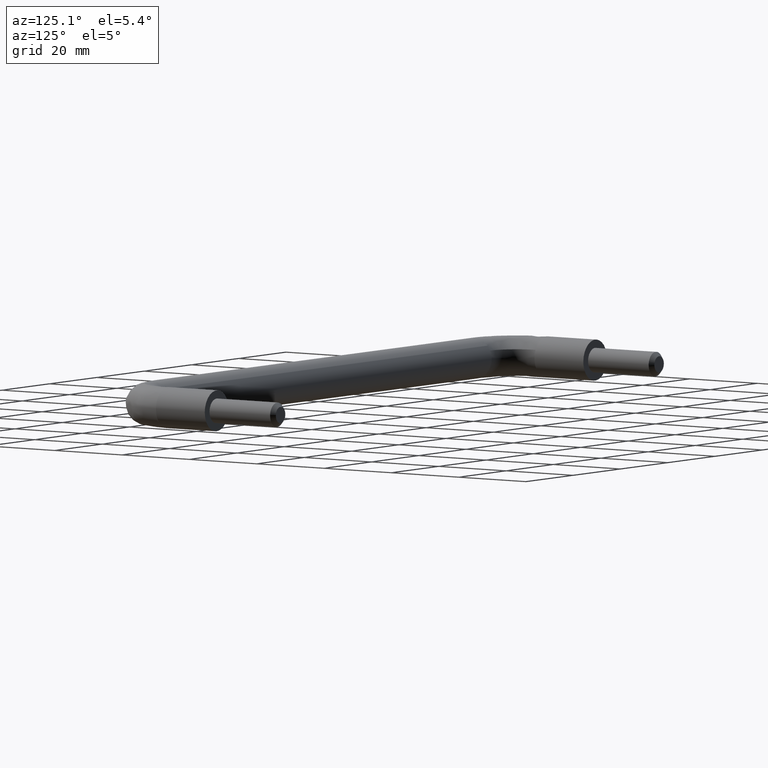
[diagram: clean part render]
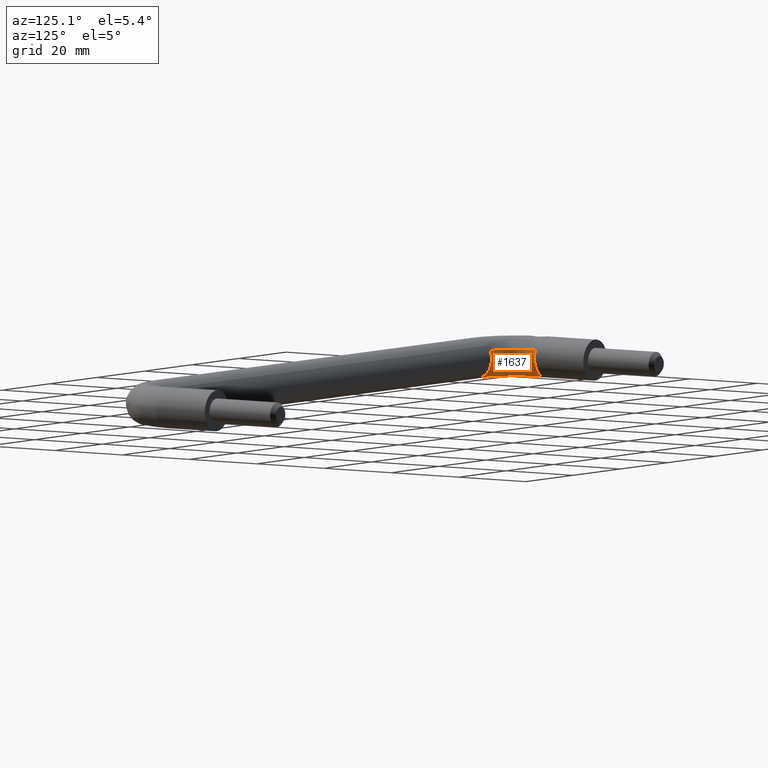
[diagram: same view with one face highlighted and labeled with its STEP entity id]
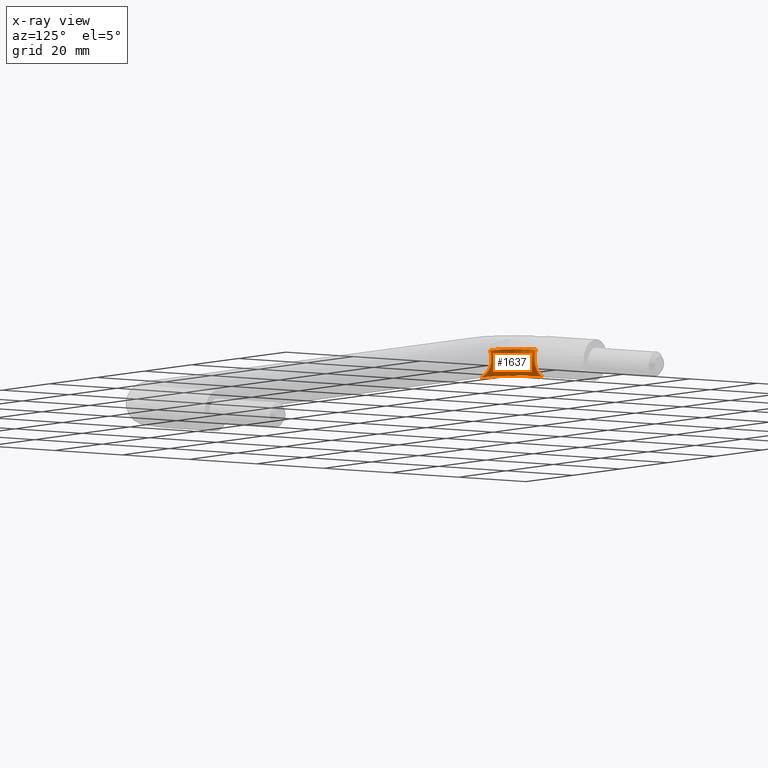
[diagram: x-ray of the same camera — body ghosted, the highlighted face saturated]
A machine part, auxiliary view. The second image highlights one B-rep face of the part: STEP entity #1637.
The next image is the same camera in x-ray: the body ghosted, the highlighted face saturated — about 0% of this face is hidden behind the body in this view.
In plain terms, the highlighted face is a freeform B-spline surface patch.
Its self-contained STEP definition (entity closure, byte-faithful):
#1114=CARTESIAN_POINT('',(12.500000000970360,-25.191768631769509,-4.661576913336008));
#1115=VERTEX_POINT('',#1114);
#1131=CARTESIAN_POINT('',(12.500000000000000,-22.0,0.0));
#1132=VERTEX_POINT('',#1131);
#1133=CARTESIAN_POINT('',(12.500000000970362,-25.191768631769502,-4.661576913336008));
#1134=CARTESIAN_POINT('',(12.500000000000000,-22.000000000000007,-3.423485968655524));
#1135=CARTESIAN_POINT('',(12.500000000000000,-22.0,0.0));
#1143=(BOUNDED_CURVE()B_SPLINE_CURVE(2,(#1133,#1134,#1135),.UNSPECIFIED.,.F.,.U.)B_SPLINE_CURVE_WITH_KNOTS((3,3),(0.311409344367956,0.500000000000000),.UNSPECIFIED.)CURVE()GEOMETRIC_REPRESENTATION_ITEM()RATIONAL_B_SPLINE_CURVE((0.891453974465620,0.779052303335165,1.0))REPRESENTATION_ITEM(''));
#1144=EDGE_CURVE('',#1115,#1132,#1143,.T.);
#1146=CARTESIAN_POINT('',(12.500000000011530,-22.449470146599229,2.071877905019579));
#1147=VERTEX_POINT('',#1146);
#1148=CARTESIAN_POINT('',(12.500000000000000,-22.0,0.0));
#1149=CARTESIAN_POINT('',(12.499999999999998,-22.000000000000004,1.084692648932070));
#1150=CARTESIAN_POINT('',(12.500000000011529,-22.449470146599225,2.071877905019579));
#1158=(BOUNDED_CURVE()B_SPLINE_CURVE(2,(#1148,#1149,#1150),.UNSPECIFIED.,.F.,.U.)B_SPLINE_CURVE_WITH_KNOTS((3,3),(0.500000000000000,0.570375489961714),.UNSPECIFIED.)CURVE()GEOMETRIC_REPRESENTATION_ITEM()RATIONAL_B_SPLINE_CURVE((1.0,0.917549984878159,0.881519651448721))REPRESENTATION_ITEM(''));
#1159=EDGE_CURVE('',#1132,#1147,#1158,.T.);
#1284=CARTESIAN_POINT('',(4.550529853313581,-14.500000000180171,2.071877905211090));
#1285=VERTEX_POINT('',#1284);
#1301=CARTESIAN_POINT('',(5.000000000000002,-14.500000000000000,0.0));
#1302=VERTEX_POINT('',#1301);
#1303=CARTESIAN_POINT('',(5.000000000000002,-14.500000000000000,0.0));
#1304=CARTESIAN_POINT('',(5.000000000000003,-14.500000000000004,1.084692649152395));
#1305=CARTESIAN_POINT('',(4.550529853313581,-14.500000000180165,2.071877905211090));
#1313=(BOUNDED_CURVE()B_SPLINE_CURVE(2,(#1303,#1304,#1305),.UNSPECIFIED.,.F.,.U.)B_SPLINE_CURVE_WITH_KNOTS((3,3),(0.500000000000000,0.570375489974830),.UNSPECIFIED.)CURVE()GEOMETRIC_REPRESENTATION_ITEM()RATIONAL_B_SPLINE_CURVE((1.0,0.917549984862793,0.881519651435290))REPRESENTATION_ITEM(''));
#1314=EDGE_CURVE('',#1302,#1285,#1313,.T.);
#1316=CARTESIAN_POINT('',(1.808231368748996,-14.500000001453440,-4.661576913134882));
#1317=VERTEX_POINT('',#1316);
#1318=CARTESIAN_POINT('',(1.808231368748997,-14.500000001453447,-4.661576913134882));
#1319=CARTESIAN_POINT('',(5.0,-14.500000000000000,-3.423485967838657));
#1320=CARTESIAN_POINT('',(5.000000000000002,-14.500000000000000,0.0));
#1328=(BOUNDED_CURVE()B_SPLINE_CURVE(2,(#1318,#1319,#1320),.UNSPECIFIED.,.F.,.U.)B_SPLINE_CURVE_WITH_KNOTS((3,3),(0.311409344403013,0.500000000000000),.UNSPECIFIED.)CURVE()GEOMETRIC_REPRESENTATION_ITEM()RATIONAL_B_SPLINE_CURVE((0.891453974423832,0.779052303376237,1.0))REPRESENTATION_ITEM(''));
#1329=EDGE_CURVE('',#1317,#1302,#1328,.T.);
#1559=CARTESIAN_POINT('',(4.550529853313581,-14.500000000180169,2.071877905211090));
#1560=CARTESIAN_POINT('',(4.550529853717394,-20.951149267289725,2.071877904966421));
#1561=CARTESIAN_POINT('',(10.863501337287770,-22.279199684943730,2.071877904966421));
#1562=CARTESIAN_POINT('',(11.672892723713218,-22.449470146577426,2.071877904966421));
#1563=CARTESIAN_POINT('',(12.500000000011530,-22.449470146599225,2.071877905019579));
#1571=(BOUNDED_CURVE()B_SPLINE_CURVE(2,(#1559,#1560,#1561,#1562,#1563),.UNSPECIFIED.,.F.,.U.)B_SPLINE_CURVE_WITH_KNOTS((3,2,3),(-3.759886875664527,-2.0,-1.712481691733748),.UNSPECIFIED.)CURVE()GEOMETRIC_REPRESENTATION_ITEM()RATIONAL_B_SPLINE_CURVE((0.940720929703471,0.753120240884012,1.0,0.959666469664758,0.930929567737911))REPRESENTATION_ITEM(''));
#1572=EDGE_CURVE('',#1285,#1147,#1571,.T.);
#1578=CARTESIAN_POINT('',(1.808231368748996,-14.500000001453447,-4.661576913134882));
#1579=CARTESIAN_POINT('',(1.808231369436670,-23.176577698113945,-4.661576913783186));
#1580=CARTESIAN_POINT('',(10.298964616862618,-24.962760617643845,-4.661576913783187));
#1581=CARTESIAN_POINT('',(11.387568672867300,-25.191768633124241,-4.661576913783187));
#1582=CARTESIAN_POINT('',(12.500000000970365,-25.191768631769513,-4.661576913336008));
#1590=(BOUNDED_CURVE()B_SPLINE_CURVE(2,(#1578,#1579,#1580,#1581,#1582),.UNSPECIFIED.,.F.,.U.)B_SPLINE_CURVE_WITH_KNOTS((3,2,3),(-3.759886875357680,-2.0,-1.712481691494341),.UNSPECIFIED.)CURVE()GEOMETRIC_REPRESENTATION_ITEM()RATIONAL_B_SPLINE_CURVE((0.919560165650581,0.736179404202421,0.977505800795127,0.938079540893053,0.909989052548728))REPRESENTATION_ITEM(''));
#1591=EDGE_CURVE('',#1317,#1115,#1590,.T.);
#1596=CARTESIAN_POINT('',(4.572644027323381,-13.907460639488143,2.071877904966421));
#1597=CARTESIAN_POINT('',(4.053963527725351,-20.846687348153413,2.071877904966421));
#1598=CARTESIAN_POINT('',(10.863501337287770,-22.279199684943730,2.071877904966421));
#1599=CARTESIAN_POINT('',(11.977438975993502,-22.513537088522014,2.071877904966421));
#1600=CARTESIAN_POINT('',(13.112375872660706,-22.425848308028016,2.071877904966421));
#1601=CARTESIAN_POINT('',(6.638758294280994,-14.061894732104538,-2.478651948458555));
#1602=CARTESIAN_POINT('',(6.255261982690400,-19.192544236233626,-2.478651948458555));
#1603=CARTESIAN_POINT('',(11.290023527856839,-20.251699531049717,-2.478651948458556));
#1604=CARTESIAN_POINT('',(12.113634548738958,-20.424961356026046,-2.478651948458556));
#1605=CARTESIAN_POINT('',(12.952771771166358,-20.360126985130314,-2.478651948458555));
#1606=CARTESIAN_POINT('',(2.100887298195315,-13.722706333428647,-4.550529853424976));
#1607=CARTESIAN_POINT('',(1.420481751864450,-22.825590177109294,-4.550529853424976));
#1608=CARTESIAN_POINT('',(10.353239580945550,-24.704761150174392,-4.550529853424976));
#1609=CARTESIAN_POINT('',(11.814503978256543,-25.012165167157889,-4.550529853424976));
#1610=CARTESIAN_POINT('',(13.303315221066637,-24.897134945961316,-4.550529853424976));
#1611=CARTESIAN_POINT('',(1.971015505212355,-13.712998916551209,-4.609826051706476));
#1612=CARTESIAN_POINT('',(1.282112552343891,-22.929566290740112,-4.609826051706476));
#1613=CARTESIAN_POINT('',(10.326429252725996,-24.832205737567502,-4.609826051706477));
#1614=CARTESIAN_POINT('',(11.805942998105705,-25.143448842750217,-4.609826051706477));
#1615=CARTESIAN_POINT('',(13.313347614318069,-25.026982039269910,-4.609826051706476));
#1616=CARTESIAN_POINT('',(1.837974440004367,-13.703054608767893,-4.661576813987963));
#1617=CARTESIAN_POINT('',(1.140366717675950,-23.036079742167143,-4.661576813987963));
#1618=CARTESIAN_POINT('',(10.298964669824828,-24.962760365884666,-4.661576813987964));
#1619=CARTESIAN_POINT('',(11.797173103640308,-25.277936244856964,-4.661576813987963));
#1620=CARTESIAN_POINT('',(13.323624828901004,-25.159997802055319,-4.661576813987965));
#1628=(BOUNDED_SURFACE()B_SPLINE_SURFACE(2,2,((#1596,#1601,#1606,#1611,#1616),(#1597,#1602,#1607,#1612,#1617),(#1598,#1603,#1608,#1613,#1618),(#1599,#1604,#1609,#1614,#1619),(#1600,#1605,#1610,#1615,#1620)),.UNSPECIFIED.,.F.,.F.,.U.)B_SPLINE_SURFACE_WITH_KNOTS((3,2,3),(3,2,3),(0.0,16.072413361522049,19.436690036943460),(0.0,8.284271247461899,8.615641781340505),.UNSPECIFIED.)GEOMETRIC_REPRESENTATION_ITEM()RATIONAL_B_SPLINE_SURFACE(((0.963991257828157,0.681644755414839,0.963991257828157,0.952697408502289,0.942307066260837),(0.738773922018271,0.522392050022901,0.738773922018271,0.730118655392770,0.722155809436964),(1.0,0.707106781186548,1.0,0.988284282420452,0.977505821353428),(0.945320171812547,0.668442303881085,0.945320171812547,0.934245067657341,0.924055970989588),(0.911953783596509,0.644848704509821,0.911953783596509,0.901269590622292,0.891440132270872)))REPRESENTATION_ITEM('')SURFACE());
#1629=ORIENTED_EDGE('',*,*,#1144,.F.);
#1630=ORIENTED_EDGE('',*,*,#1591,.F.);
#1631=ORIENTED_EDGE('',*,*,#1329,.T.);
#1632=ORIENTED_EDGE('',*,*,#1314,.T.);
#1633=ORIENTED_EDGE('',*,*,#1572,.T.);
#1634=ORIENTED_EDGE('',*,*,#1159,.F.);
#1635=EDGE_LOOP('',(#1629,#1630,#1631,#1632,#1633,#1634));
#1636=FACE_OUTER_BOUND('',#1635,.T.);
#1637=ADVANCED_FACE('',(#1636),#1628,.T.);